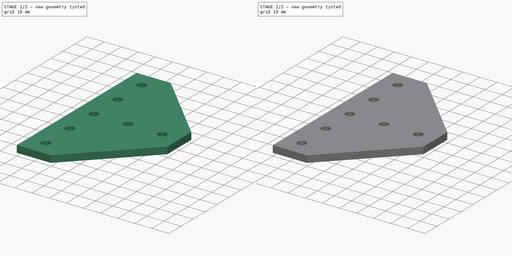
[diagram: build sequence overview — one tinted view per stage of 2, left to right]
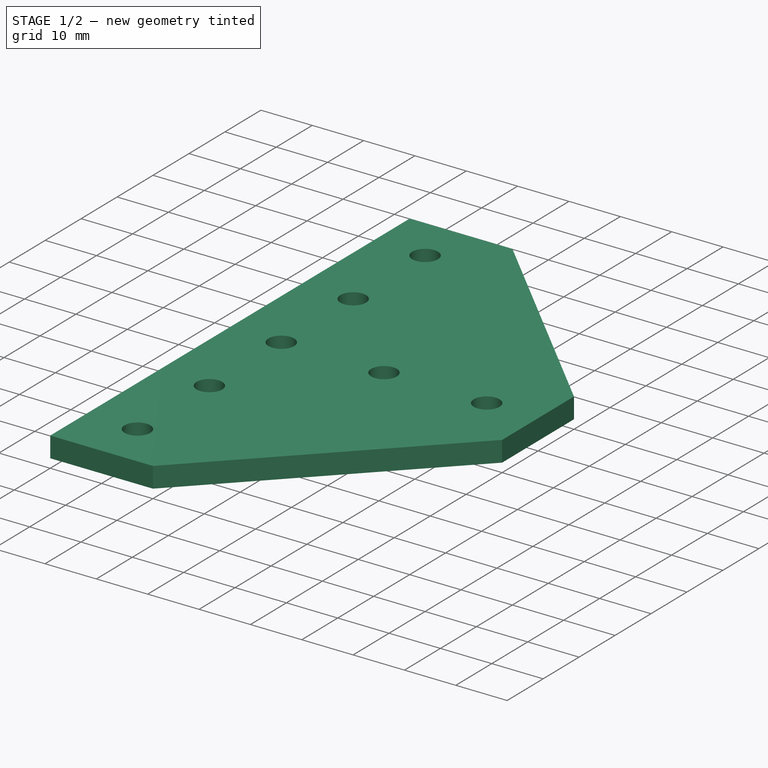
[diagram: stage 1 of 2 — iso view after this stage's code; geometry added in this stage tinted green]
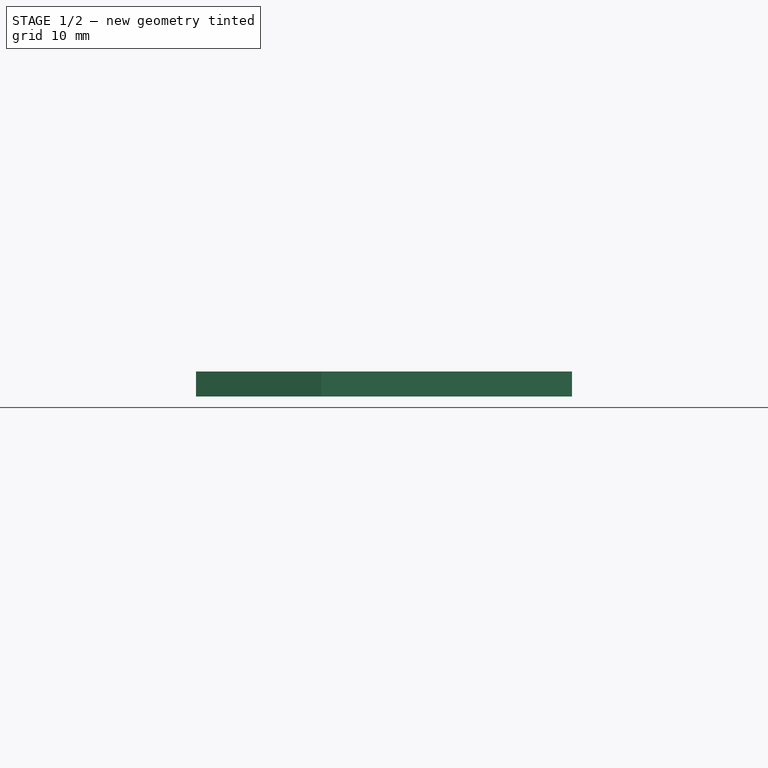
[diagram: stage 1 of 2 — front view after this stage's code; geometry added in this stage tinted green]
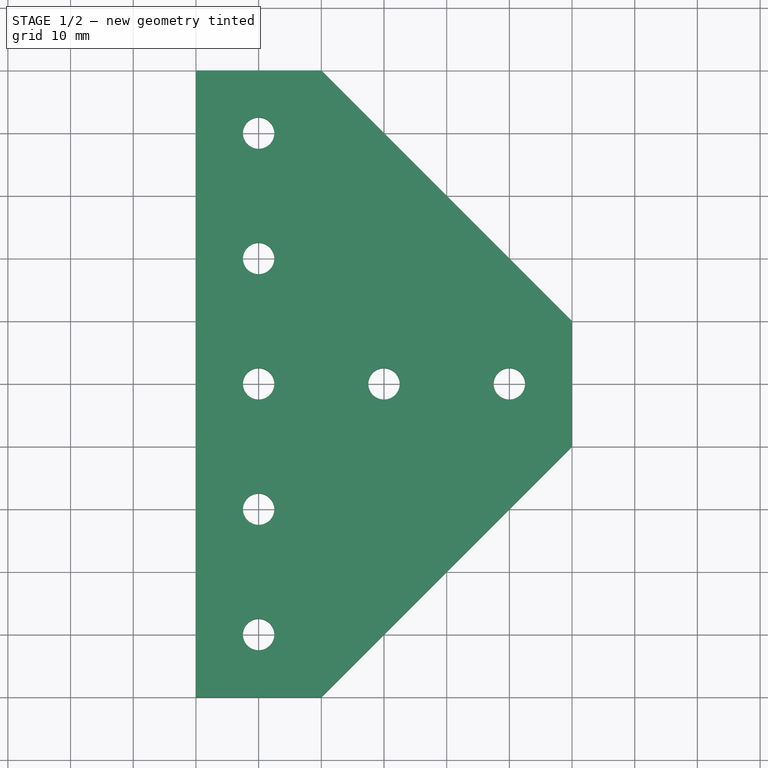
[diagram: stage 1 of 2 — top view after this stage's code; geometry added in this stage tinted green]
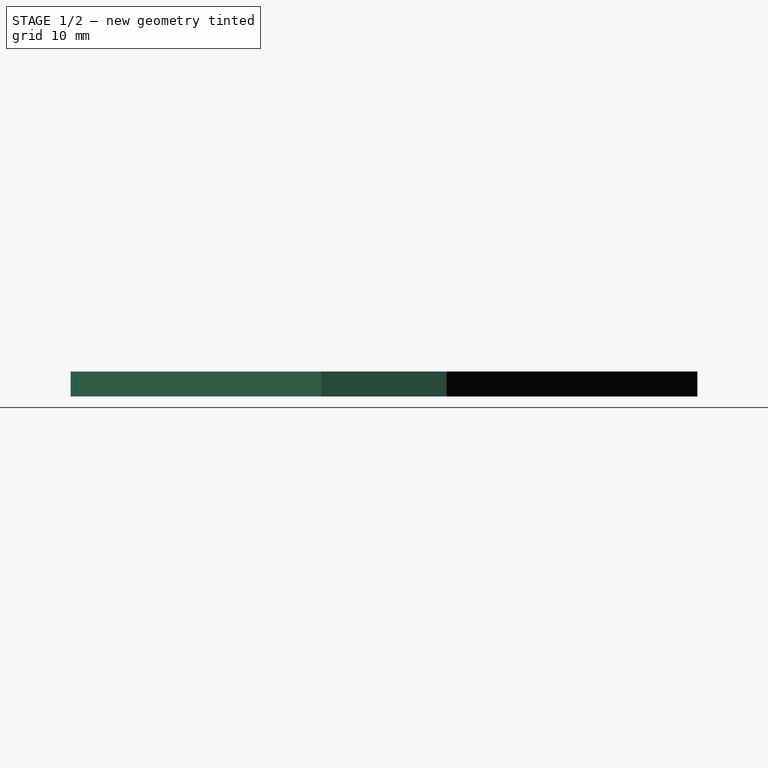
[diagram: stage 1 of 2 — right view after this stage's code; geometry added in this stage tinted green]
FCSTD DOCUMENT  (FreeCAD 0.20RUnknown)
Label: FlatBracket2020
License: All rights reserved
LicenseURL: http://en.wikipedia.org/wiki/All_rights_reserved
objects: Sketcher::SketchObject×4, Part::Face×4, Part::Cut×2, Part::Extrusion×2
note: 12 computed .brp shape members not serialized (recipe doc carries the construction recipe); baked Part::Feature solids carry a one-line shape summary decoded from their .brp

FEATURE [Sketcher::SketchObject] Sketch002
  FullyConstrained = true
  sketch-geometry (14):
    g0: LineSegment StartX=0 StartY=0 StartZ=0 EndX=20 EndY=0 EndZ=0
    g1: LineSegment StartX=20 StartY=0 StartZ=0 EndX=20 EndY=60 EndZ=0
    g2: LineSegment StartX=20 StartY=60 StartZ=0 EndX=0 EndY=60 EndZ=0
    g3: LineSegment StartX=0 StartY=60 StartZ=0 EndX=0 EndY=0 EndZ=0
    g4: LineSegment StartX=0 StartY=0 StartZ=0 EndX=60 EndY=0 EndZ=0
    g5: LineSegment StartX=60 StartY=0 StartZ=0 EndX=60 EndY=20 EndZ=0
    g6: LineSegment StartX=60 StartY=20 StartZ=0 EndX=0 EndY=20 EndZ=0
    g7: LineSegment StartX=0 StartY=20 StartZ=0 EndX=0 EndY=0 EndZ=0
    g8: LineSegment StartX=20 StartY=60 StartZ=0 EndX=60 EndY=20 EndZ=0
    g9: LineSegment StartX=60 StartY=20 StartZ=0 EndX=60 EndY=0 EndZ=0
    g10: LineSegment StartX=0 StartY=60 StartZ=0 EndX=20 EndY=60 EndZ=0
    g11: LineSegment StartX=0 StartY=60 StartZ=0 EndX=0 EndY=-40 EndZ=0
    g12: LineSegment StartX=0 StartY=-40 StartZ=0 EndX=20 EndY=-40 EndZ=0
    g13: LineSegment StartX=60 StartY=0 StartZ=0 EndX=20 EndY=-40 EndZ=0
  constraints (37):
    c: Coincident(g0,g1)
    c: Coincident(g1,g2)
    c: Coincident(g2,g3)
    c: Coincident(g3,g0)
    c: Horizontal(g0)
    c: Horizontal(g2)
    c: Vertical(g1)
    c: Vertical(g3)
    c: Coincident(g0,g-1)
    c: Coincident(g4,g5)
    c: Coincident(g5,g6)
    c: Coincident(g6,g7)
    c: Coincident(g7,g4)
    c: Horizontal(g4)
    c: Horizontal(g6)
    c: Vertical(g5)
    c: Vertical(g7)
    c: Coincident(g4,g0)
    c: DistanceY(g3,g3) = 60
    c: DistanceX(g4,g4) = 60
    c: DistanceY(g5,g5) = 20
    c: DistanceX(g2,g2) = 20
    c: Coincident(g1,g8)
    c: Coincident(g8,g5)
    c: Coincident(g8,g9)
    c: Coincident(g9,g4)
    c: Coincident(g10,g8)
    c: Coincident(g11,g10)
    c: PointOnObject(g11,g-2)
    c: Vertical(g11)
    c: Coincident(g12,g11)
    c: Horizontal(g12)
    c: Coincident(g13,g9)
    c: Coincident(g13,g12)
    c: Vertical(g12,g8)
    c: DistanceY(g11,g0) = 40
    c: Horizontal(g8,g10)
FEATURE [Part::Face] Face002
  FaceMakerClass = Part::FaceMakerBullseye
  Sources = -> [Sketch002]
FEATURE [Sketcher::SketchObject] Sketch003
  FullyConstrained = true
  MapMode = 2
  Support = -> [Sketch002]
  sketch-geometry (7):
    g0: Circle CenterX=10 CenterY=10 CenterZ=0 NormalX=0 NormalY=0 NormalZ=1 AngleXU=0 Radius=2.5
    g1: Circle CenterX=10 CenterY=30 CenterZ=0 NormalX=0 NormalY=0 NormalZ=1 AngleXU=0 Radius=2.5
    g2: Circle CenterX=10 CenterY=50 CenterZ=0 NormalX=0 NormalY=0 NormalZ=1 AngleXU=0 Radius=2.5
    g3: Circle CenterX=30 CenterY=10 CenterZ=0 NormalX=0 NormalY=0 NormalZ=1 AngleXU=0 Radius=2.5
    g4: Circle CenterX=50 CenterY=10 CenterZ=0 NormalX=0 NormalY=0 NormalZ=1 AngleXU=0 Radius=2.5
    g5: Circle CenterX=10 CenterY=-10 CenterZ=0 NormalX=0 NormalY=0 NormalZ=1 AngleXU=0 Radius=2.5
    g6: Circle CenterX=10 CenterY=-30 CenterZ=0 NormalX=0 NormalY=0 NormalZ=1 AngleXU=0 Radius=2.5
  constraints (21):
    c: Diameter(g2) = 5
    c: Diameter(g1) = 5
    c: Diameter(g0) = 5
    c: Diameter(g3) = 5
    c: Diameter(g4) = 5
    c: Horizontal(g0,g3)
    c: Horizontal(g3,g4)
    c: Vertical(g0,g1)
    c: Vertical(g1,g2)
    c: DistanceX(g-1,g0) = 10
    c: DistanceY(g-1,g0) = 10
    c: DistanceY(g0,g1) = 20
    c: DistanceY(g1,g2) = 20
    c: DistanceX(g0,g3) = 20
    c: DistanceX(g3,g4) = 20
    c: Diameter(g5) = 5
    c: Diameter(g6) = 5
    c: Vertical(g6,g5)
    c: Vertical(g5,g0)
    c: DistanceY(g5,g-1) = 10
    c: DistanceY(g6,g5) = 20
FEATURE [Part::Face] Face003
  FaceMakerClass = Part::FaceMakerBullseye
  Sources = -> [Sketch003]
FEATURE [Part::Cut] Cut001
  Base = -> Face002
  Tool = -> Face003
FEATURE [Part::Extrusion] Extrude001  label="T (5x3)"
  Base = -> Cut001
  Dir = (0,0,1)
  DirMode = 2
  FaceMakerClass = Part::FaceMakerBullseye
  LengthFwd = 4
  LengthRev = 0
  Solid = false
  Symmetric = false
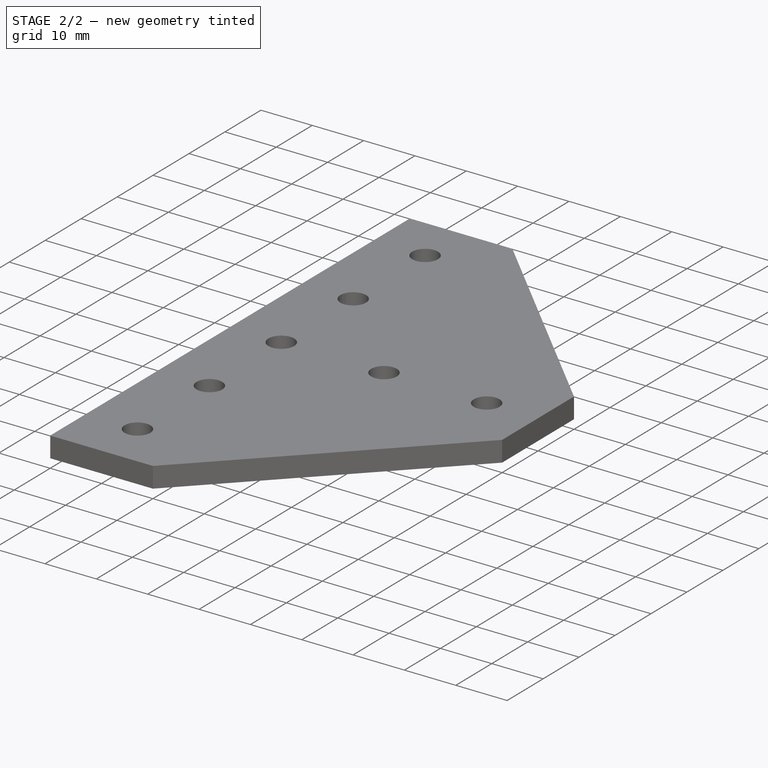
[diagram: stage 2 of 2 — iso view after this stage's code; geometry added in this stage tinted green]
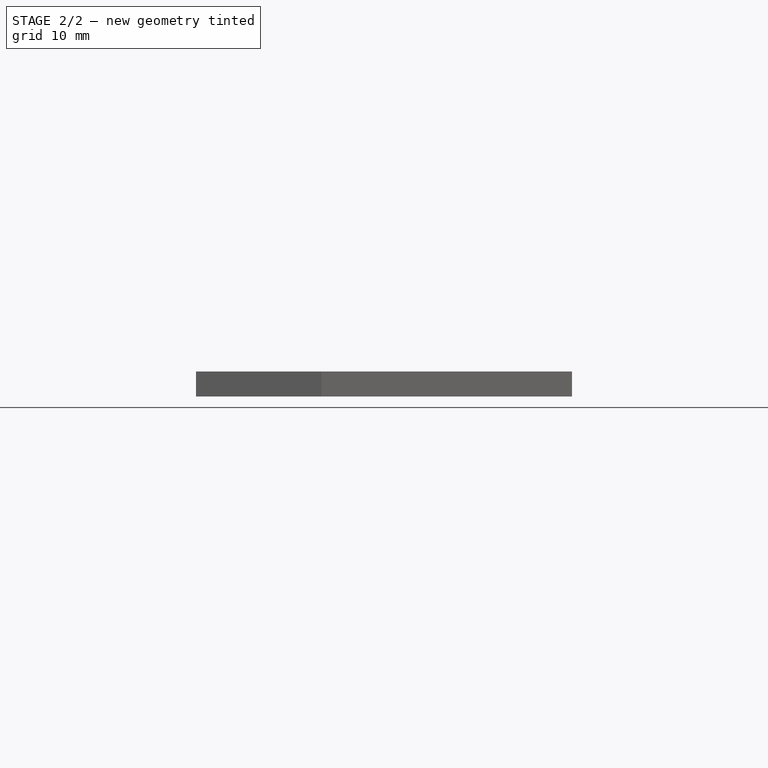
[diagram: stage 2 of 2 — front view after this stage's code; geometry added in this stage tinted green]
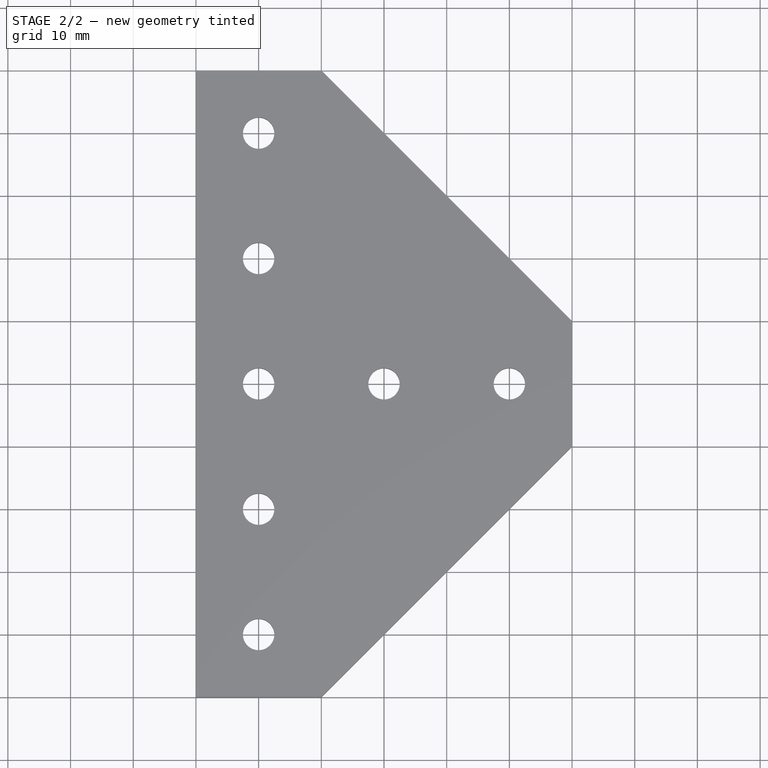
[diagram: stage 2 of 2 — top view after this stage's code; geometry added in this stage tinted green]
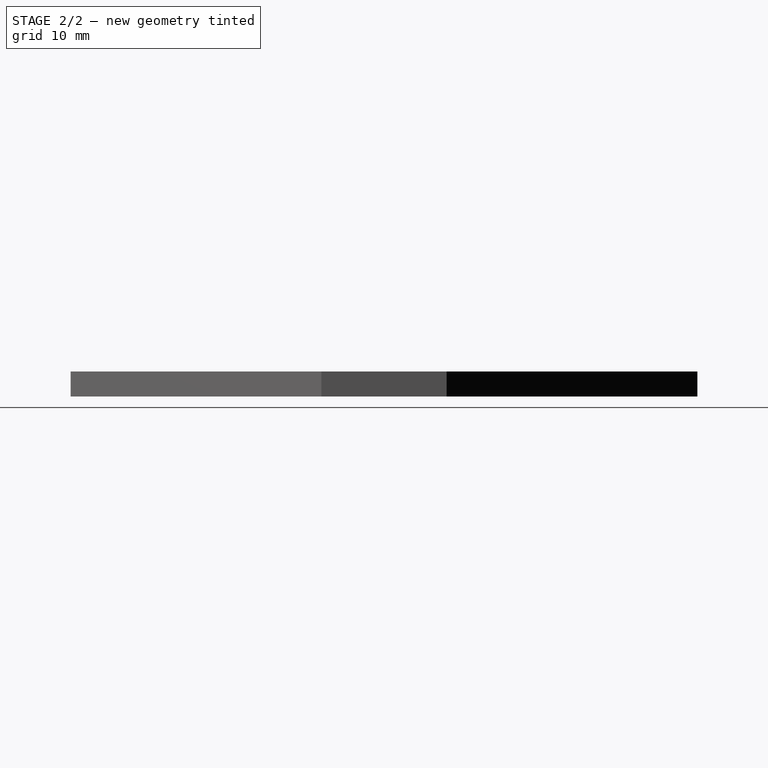
[diagram: stage 2 of 2 — right view after this stage's code; geometry added in this stage tinted green]
FEATURE [Sketcher::SketchObject] Sketch
  FullyConstrained = true
  sketch-geometry (13):
    g0: LineSegment StartX=0 StartY=0 StartZ=0 EndX=20 EndY=0 EndZ=0
    g1: LineSegment StartX=20 StartY=0 StartZ=0 EndX=20 EndY=60 EndZ=0
    g2: LineSegment StartX=20 StartY=60 StartZ=0 EndX=0 EndY=60 EndZ=0
    g3: LineSegment StartX=0 StartY=60 StartZ=0 EndX=0 EndY=0 EndZ=0
    g4: LineSegment StartX=0 StartY=0 StartZ=0 EndX=60 EndY=0 EndZ=0
    g5: LineSegment StartX=60 StartY=0 StartZ=0 EndX=60 EndY=20 EndZ=0
    g6: LineSegment StartX=60 StartY=20 StartZ=0 EndX=0 EndY=20 EndZ=0
    g7: LineSegment StartX=0 StartY=20 StartZ=0 EndX=0 EndY=0 EndZ=0
    g8: LineSegment StartX=20 StartY=60 StartZ=0 EndX=60 EndY=20 EndZ=0
    g9: LineSegment StartX=60 StartY=20 StartZ=0 EndX=60 EndY=0 EndZ=0
    g10: LineSegment StartX=60 StartY=0 StartZ=0 EndX=0 EndY=0 EndZ=0
    g11: LineSegment StartX=0 StartY=0 StartZ=0 EndX=0 EndY=60 EndZ=0
    g12: LineSegment StartX=0 StartY=60 StartZ=0 EndX=20 EndY=60 EndZ=0
  constraints (32):
    c: Coincident(g0,g1)
    c: Coincident(g1,g2)
    c: Coincident(g2,g3)
    c: Coincident(g3,g0)
    c: Horizontal(g0)
    c: Horizontal(g2)
    c: Vertical(g1)
    c: Vertical(g3)
    c: Coincident(g0,g-1)
    c: Coincident(g4,g5)
    c: Coincident(g5,g6)
    c: Coincident(g6,g7)
    c: Coincident(g7,g4)
    c: Horizontal(g4)
    c: Horizontal(g6)
    c: Vertical(g5)
    c: Vertical(g7)
    c: Coincident(g4,g0)
    c: DistanceY(g3,g3) = 60
    c: DistanceX(g4,g4) = 60
    c: DistanceY(g5,g5) = 20
    c: DistanceX(g2,g2) = 20
    c: Coincident(g1,g8)
    c: Coincident(g8,g5)
    c: Coincident(g8,g9)
    c: Coincident(g9,g4)
    c: Coincident(g9,g10)
    c: Coincident(g10,g0)
    c: Coincident(g10,g11)
    c: Coincident(g11,g2)
    c: Coincident(g11,g12)
    c: Coincident(g12,g8)
FEATURE [Sketcher::SketchObject] Sketch001
  FullyConstrained = true
  MapMode = 2
  Support = -> [Sketch]
  sketch-geometry (5):
    g0: Circle CenterX=10 CenterY=10 CenterZ=0 NormalX=0 NormalY=0 NormalZ=1 AngleXU=0 Radius=2.5
    g1: Circle CenterX=10 CenterY=30 CenterZ=0 NormalX=0 NormalY=0 NormalZ=1 AngleXU=0 Radius=2.5
    g2: Circle CenterX=10 CenterY=50 CenterZ=0 NormalX=0 NormalY=0 NormalZ=1 AngleXU=0 Radius=2.5
    g3: Circle CenterX=30 CenterY=10 CenterZ=0 NormalX=0 NormalY=0 NormalZ=1 AngleXU=0 Radius=2.5
    g4: Circle CenterX=50 CenterY=10 CenterZ=0 NormalX=0 NormalY=0 NormalZ=1 AngleXU=0 Radius=2.5
  constraints (15):
    c: Diameter(g2) = 5
    c: Diameter(g1) = 5
    c: Diameter(g0) = 5
    c: Diameter(g3) = 5
    c: Diameter(g4) = 5
    c: Horizontal(g0,g3)
    c: Horizontal(g3,g4)
    c: Vertical(g0,g1)
    c: Vertical(g1,g2)
    c: DistanceX(g-1,g0) = 10
    c: DistanceY(g-1,g0) = 10
    c: DistanceY(g0,g1) = 20
    c: DistanceY(g1,g2) = 20
    c: DistanceX(g0,g3) = 20
    c: DistanceX(g3,g4) = 20
FEATURE [Part::Face] Face
  FaceMakerClass = Part::FaceMakerBullseye
  Sources = -> [Sketch]
FEATURE [Part::Face] Face001
  FaceMakerClass = Part::FaceMakerBullseye
  Sources = -> [Sketch001]
FEATURE [Part::Cut] Cut
  Base = -> Face
  Tool = -> Face001
FEATURE [Part::Extrusion] Extrude  label="L (3x3)"
  Base = -> Cut
  Dir = (0,0,1)
  DirMode = 2
  FaceMakerClass = Part::FaceMakerBullseye
  LengthFwd = 4
  LengthRev = 0
  Solid = false
  Symmetric = false
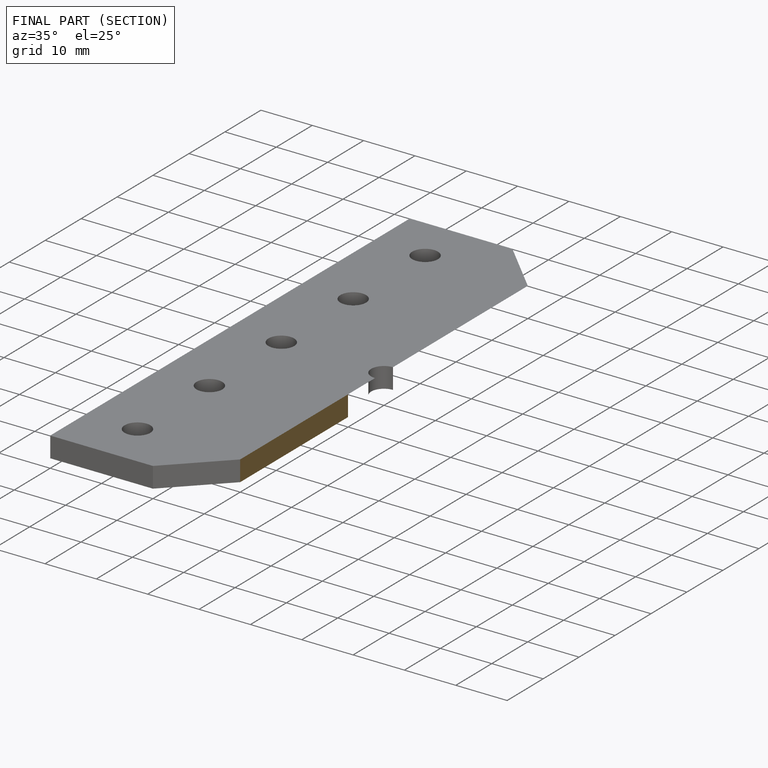
[diagram: finished part — half-section view (interior)]
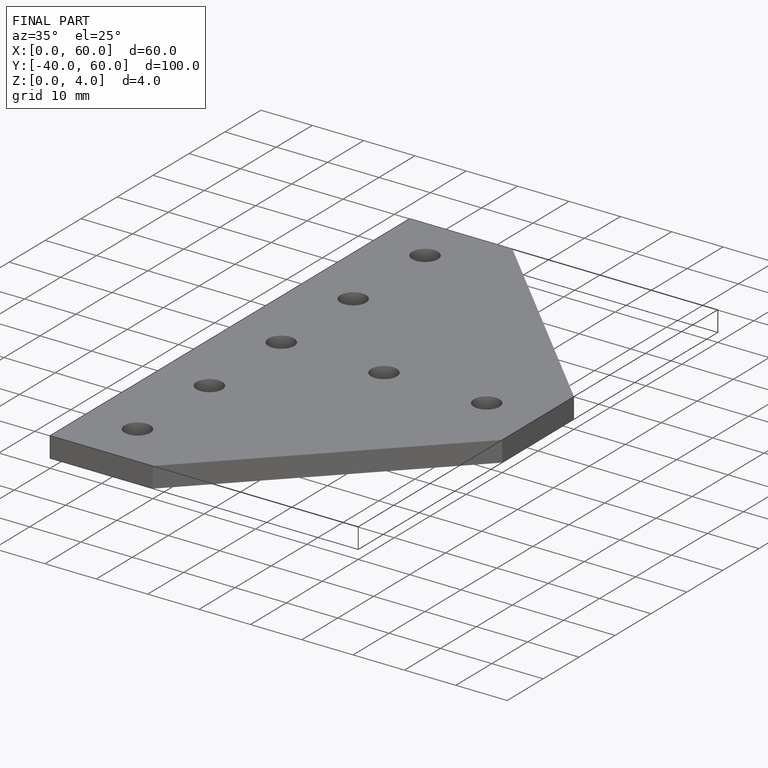
[diagram: finished part — iso view with bounding-box wireframe]
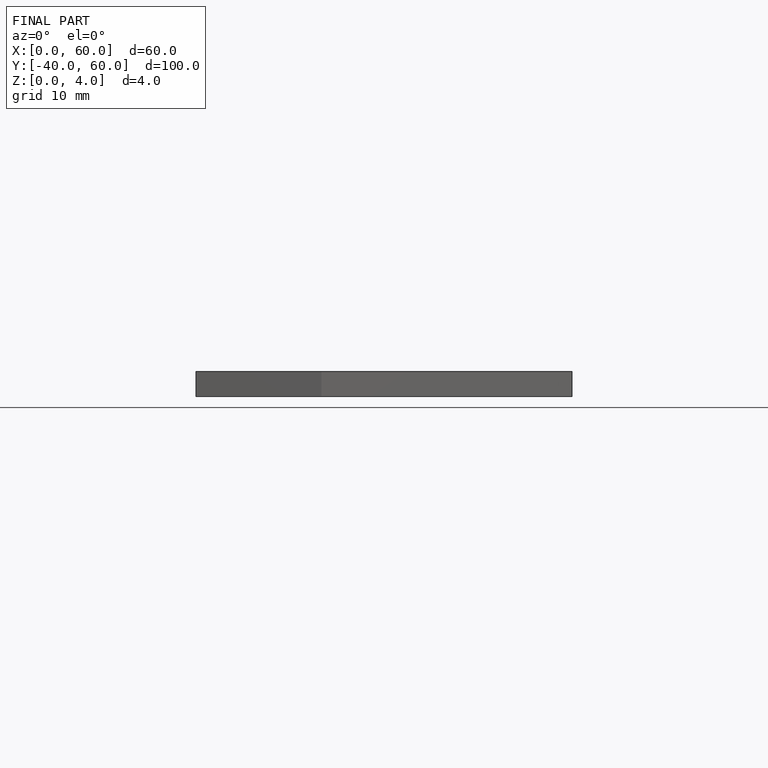
[diagram: finished part — front view with bounding-box wireframe]
